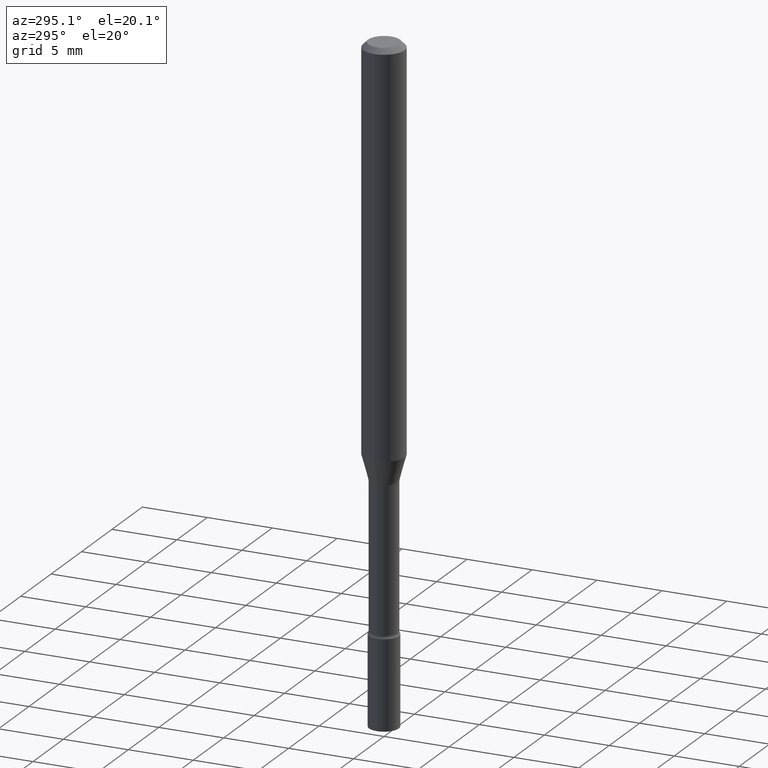
[diagram: clean part render]
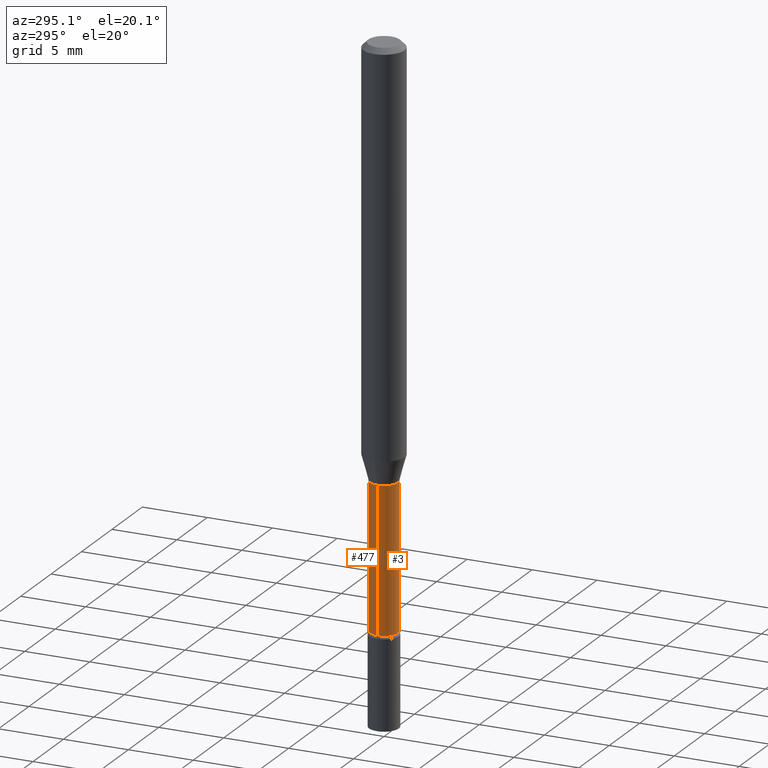
[diagram: same view with one multi-face feature highlighted, each face labeled with its STEP entity id]
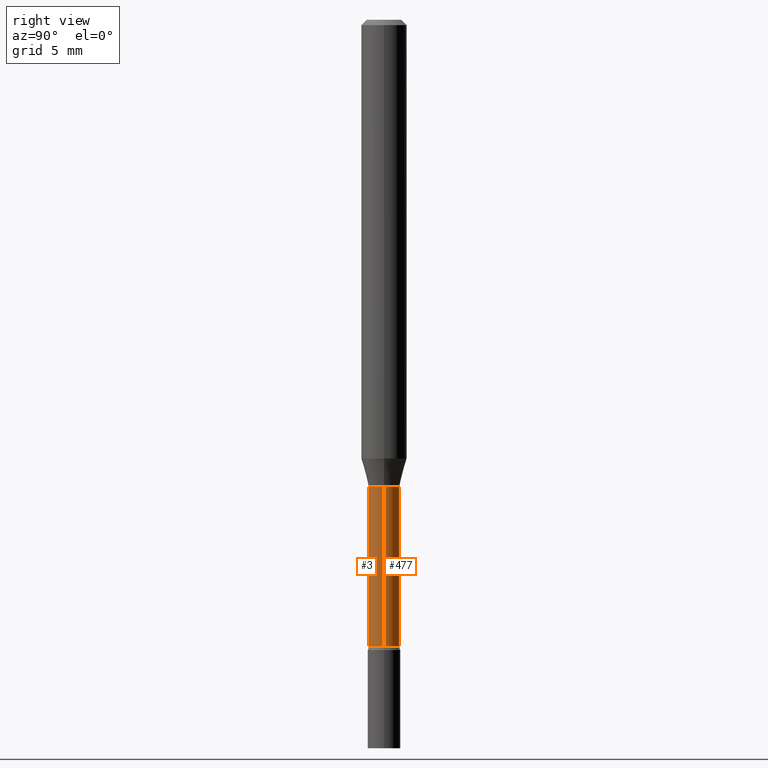
[diagram: same view with one multi-face feature highlighted, each face labeled with its STEP entity id]
A machine part, auxiliary view. The highlighted faces form ONE feature: a constant-radius fillet chain: 2 tangent blend faces with common blend radius 1.0744 mm. The faces share edges in the B-rep.
A second angle (right view) of the same feature is appended — it is thin or edge-on in the first view.
Their STEP definitions:
[1] entity #3 (Cylinder):
#3 = ADVANCED_FACE ( 'NONE', ( #167 ), #329, .T. ) ;
#27 = AXIS2_PLACEMENT_3D ( 'NONE', #187, #230, #391 ) ;
#30 = CARTESIAN_POINT ( 'NONE',  ( 0.04230000000000001814, -6.305666089183526283E-15, -1.721414547187247290 ) ) ;
#33 = ORIENTED_EDGE ( 'NONE', *, *, #160, .T. ) ;
#43 = VECTOR ( 'NONE', #516, 39.37007874015748143 ) ;
#45 = ORIENTED_EDGE ( 'NONE', *, *, #319, .F. ) ;
#81 = LINE ( 'NONE', #151, #43 ) ;
#103 = EDGE_CURVE ( 'NONE', #203, #358, #145, .T. ) ;
#105 = CARTESIAN_POINT ( 'NONE',  ( 0.000000000000000000, 0.000000000000000000, 0.000000000000000000 ) ) ;
#107 = DIRECTION ( 'NONE',  ( 1.000000000000000000, -6.982962677686266711E-15, 4.876176775795935232E-29 ) ) ;
#113 = VERTEX_POINT ( 'NONE', #30 ) ;
#116 = DIRECTION ( 'NONE',  ( -2.445468806185136597E-29, 3.491481338843145583E-15, 1.000000000000000000 ) ) ;
#143 = DIRECTION ( 'NONE',  ( -2.445468806185136597E-29, 3.491481338843145583E-15, 1.000000000000000000 ) ) ;
#145 = LINE ( 'NONE', #302, #244 ) ;
#151 = CARTESIAN_POINT ( 'NONE',  ( 0.04230000000000001814, -2.953793212661292014E-16, 2.062622776161681521E-30 ) ) ;
#160 = EDGE_CURVE ( 'NONE', #203, #113, #264, .T. ) ;
#167 = FACE_OUTER_BOUND ( 'NONE', #228, .T. ) ;
#187 = CARTESIAN_POINT ( 'NONE',  ( 4.209665577659725366E-29, -6.010286767917396835E-15, -1.721414547187247290 ) ) ;
#203 = VERTEX_POINT ( 'NONE', #435 ) ;
#221 = EDGE_CURVE ( 'NONE', #113, #493, #81, .T. ) ;
#228 = EDGE_LOOP ( 'NONE', ( #333, #33, #451, #45 ) ) ;
#230 = DIRECTION ( 'NONE',  ( -2.445468806185136597E-29, 3.491481338843145583E-15, 1.000000000000000000 ) ) ;
#244 = VECTOR ( 'NONE', #466, 39.37007874015748143 ) ;
#250 = CARTESIAN_POINT ( 'NONE',  ( 0.04230000000000001814, -4.771370368563433013E-15, -1.281974787463810994 ) ) ;
#256 = CIRCLE ( 'NONE', #436, 0.04230000000000001814 ) ;
#264 = CIRCLE ( 'NONE', #27, 0.04230000000000001814 ) ;
#278 = CARTESIAN_POINT ( 'NONE',  ( -0.04230000000000001814, -4.942579330380827396E-15, -1.281974787463810994 ) ) ;
#302 = CARTESIAN_POINT ( 'NONE',  ( -0.04230000000000001814, 3.005595772265225075E-16, -2.080709543177826024E-30 ) ) ;
#319 = EDGE_CURVE ( 'NONE', #358, #493, #256, .T. ) ;
#329 = CYLINDRICAL_SURFACE ( 'NONE', #470, 0.04230000000000001814 ) ;
#333 = ORIENTED_EDGE ( 'NONE', *, *, #103, .F. ) ;
#358 = VERTEX_POINT ( 'NONE', #278 ) ;
#391 = DIRECTION ( 'NONE',  ( 1.000000000000000000, -6.982962677686262766E-15, 0.000000000000000000 ) ) ;
#399 = DIRECTION ( 'NONE',  ( 1.000000000000000000, -6.982962677686262766E-15, 0.000000000000000000 ) ) ;
#435 = CARTESIAN_POINT ( 'NONE',  ( -0.04230000000000001814, -5.715122837898735610E-15, -1.721414547187247290 ) ) ;
#436 = AXIS2_PLACEMENT_3D ( 'NONE', #476, #116, #399 ) ;
#451 = ORIENTED_EDGE ( 'NONE', *, *, #221, .T. ) ;
#466 = DIRECTION ( 'NONE',  ( -2.445468806185136877E-29, 3.491481338843145188E-15, 1.000000000000000000 ) ) ;
#470 = AXIS2_PLACEMENT_3D ( 'NONE', #105, #143, #107 ) ;
#476 = CARTESIAN_POINT ( 'NONE',  ( 3.135029353058570194E-29, -4.475991047297303565E-15, -1.281974787463810994 ) ) ;
#493 = VERTEX_POINT ( 'NONE', #250 ) ;
#516 = DIRECTION ( 'NONE',  ( -2.445468806185136877E-29, 3.491481338843145188E-15, 1.000000000000000000 ) ) ;
[2] entity #477 (Cylinder):
#11 = FACE_OUTER_BOUND ( 'NONE', #173, .T. ) ;
#25 = EDGE_CURVE ( 'NONE', #493, #358, #330, .T. ) ;
#28 = ORIENTED_EDGE ( 'NONE', *, *, #221, .F. ) ;
#30 = CARTESIAN_POINT ( 'NONE',  ( 0.04230000000000001814, -6.305666089183526283E-15, -1.721414547187247290 ) ) ;
#43 = VECTOR ( 'NONE', #516, 39.37007874015748143 ) ;
#54 = ORIENTED_EDGE ( 'NONE', *, *, #103, .T. ) ;
#60 = AXIS2_PLACEMENT_3D ( 'NONE', #201, #169, #284 ) ;
#66 = DIRECTION ( 'NONE',  ( -2.445468806185136597E-29, 3.491481338843145583E-15, 1.000000000000000000 ) ) ;
#74 = EDGE_CURVE ( 'NONE', #113, #203, #357, .T. ) ;
#81 = LINE ( 'NONE', #151, #43 ) ;
#103 = EDGE_CURVE ( 'NONE', #203, #358, #145, .T. ) ;
#113 = VERTEX_POINT ( 'NONE', #30 ) ;
#145 = LINE ( 'NONE', #302, #244 ) ;
#151 = CARTESIAN_POINT ( 'NONE',  ( 0.04230000000000001814, -2.953793212661292014E-16, 2.062622776161681521E-30 ) ) ;
#169 = DIRECTION ( 'NONE',  ( -2.445468806185136597E-29, 3.491481338843145583E-15, 1.000000000000000000 ) ) ;
#173 = EDGE_LOOP ( 'NONE', ( #416, #54, #461, #28 ) ) ;
#185 = DIRECTION ( 'NONE',  ( -2.445468806185136597E-29, 3.491481338843145583E-15, 1.000000000000000000 ) ) ;
#201 = CARTESIAN_POINT ( 'NONE',  ( 0.000000000000000000, 0.000000000000000000, 0.000000000000000000 ) ) ;
#203 = VERTEX_POINT ( 'NONE', #435 ) ;
#215 = DIRECTION ( 'NONE',  ( 1.000000000000000000, -6.982962677686262766E-15, 0.000000000000000000 ) ) ;
#217 = DIRECTION ( 'NONE',  ( 1.000000000000000000, -6.982962677686262766E-15, 0.000000000000000000 ) ) ;
#221 = EDGE_CURVE ( 'NONE', #113, #493, #81, .T. ) ;
#244 = VECTOR ( 'NONE', #466, 39.37007874015748143 ) ;
#250 = CARTESIAN_POINT ( 'NONE',  ( 0.04230000000000001814, -4.771370368563433013E-15, -1.281974787463810994 ) ) ;
#278 = CARTESIAN_POINT ( 'NONE',  ( -0.04230000000000001814, -4.942579330380827396E-15, -1.281974787463810994 ) ) ;
#284 = DIRECTION ( 'NONE',  ( 1.000000000000000000, -6.982962677686266711E-15, 4.876176775795935232E-29 ) ) ;
#302 = CARTESIAN_POINT ( 'NONE',  ( -0.04230000000000001814, 3.005595772265225075E-16, -2.080709543177826024E-30 ) ) ;
#330 = CIRCLE ( 'NONE', #480, 0.04230000000000001814 ) ;
#357 = CIRCLE ( 'NONE', #429, 0.04230000000000001814 ) ;
#358 = VERTEX_POINT ( 'NONE', #278 ) ;
#376 = CYLINDRICAL_SURFACE ( 'NONE', #60, 0.04230000000000001814 ) ;
#379 = CARTESIAN_POINT ( 'NONE',  ( 4.209665577659725366E-29, -6.010286767917396835E-15, -1.721414547187247290 ) ) ;
#416 = ORIENTED_EDGE ( 'NONE', *, *, #74, .T. ) ;
#429 = AXIS2_PLACEMENT_3D ( 'NONE', #379, #66, #215 ) ;
#435 = CARTESIAN_POINT ( 'NONE',  ( -0.04230000000000001814, -5.715122837898735610E-15, -1.721414547187247290 ) ) ;
#461 = ORIENTED_EDGE ( 'NONE', *, *, #25, .F. ) ;
#464 = CARTESIAN_POINT ( 'NONE',  ( 3.135029353058570194E-29, -4.475991047297303565E-15, -1.281974787463810994 ) ) ;
#466 = DIRECTION ( 'NONE',  ( -2.445468806185136877E-29, 3.491481338843145188E-15, 1.000000000000000000 ) ) ;
#477 = ADVANCED_FACE ( 'NONE', ( #11 ), #376, .T. ) ;
#480 = AXIS2_PLACEMENT_3D ( 'NONE', #464, #185, #217 ) ;
#493 = VERTEX_POINT ( 'NONE', #250 ) ;
#516 = DIRECTION ( 'NONE',  ( -2.445468806185136877E-29, 3.491481338843145188E-15, 1.000000000000000000 ) ) ;